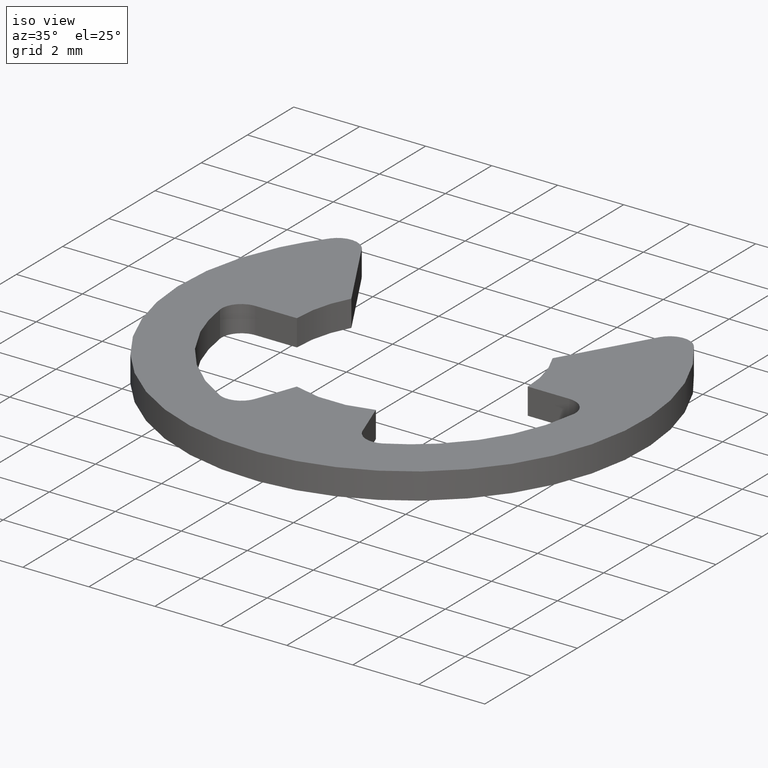
[diagram: clean part render]
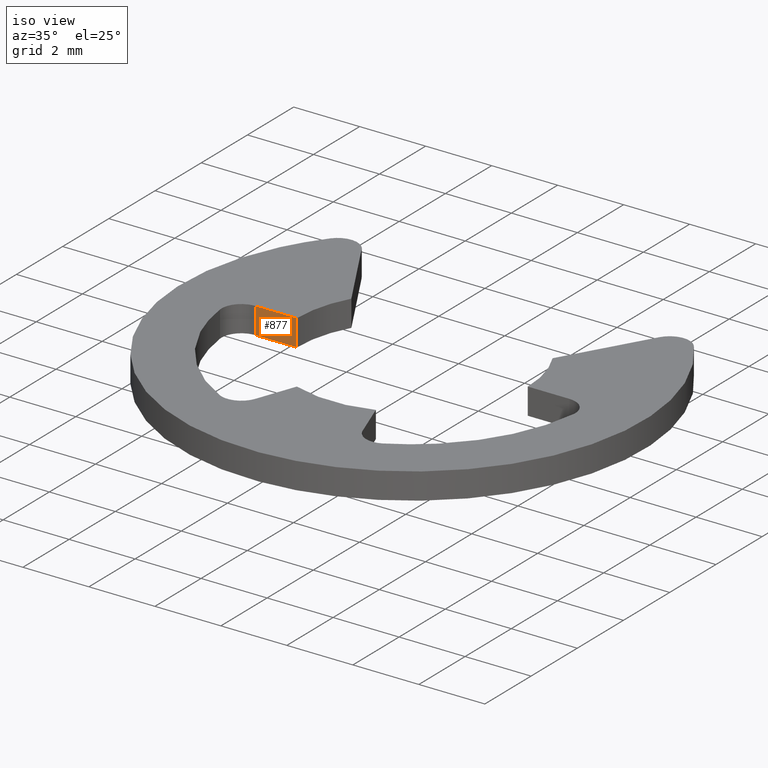
[diagram: same view with one face highlighted and labeled with its STEP entity id]
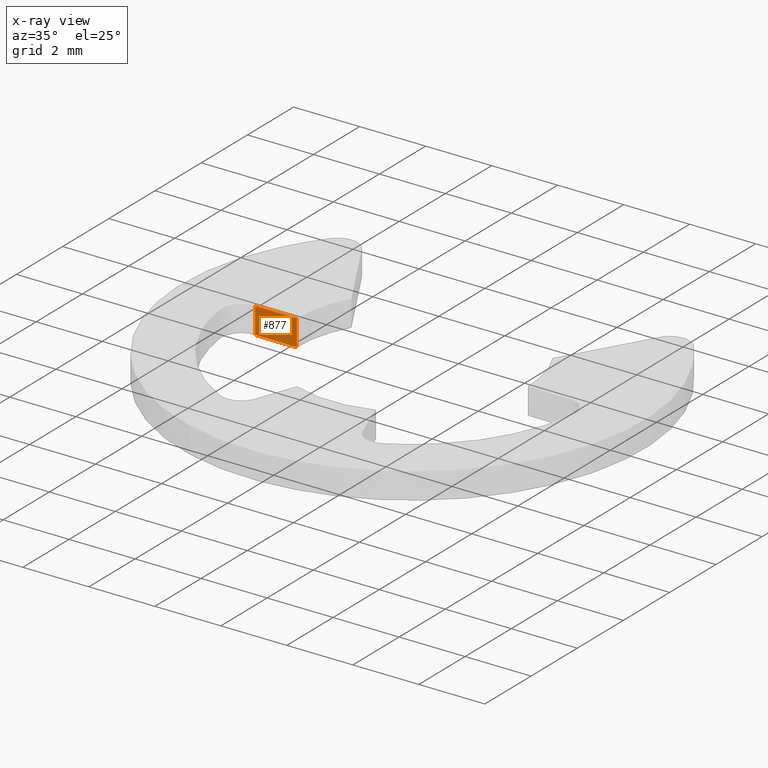
[diagram: x-ray of the same camera — body ghosted, the highlighted face saturated]
A machine part, iso view. The second image highlights one B-rep face of the part: STEP entity #877.
The next image is the same camera in x-ray: the body ghosted, the highlighted face saturated — about 0% of this face is hidden behind the body in this view.
In plain terms, the highlighted face is a freeform B-spline surface patch.
Its self-contained STEP definition (entity closure, byte-faithful):
#75=CARTESIAN_POINT('',(-3.500000000000000,0.0,0.0));
#76=VERTEX_POINT('',#75);
#90=CARTESIAN_POINT('',(-4.762352359916260,0.0,0.0));
#91=VERTEX_POINT('',#90);
#92=CARTESIAN_POINT('',(-4.762352359916260,0.0,0.0));
#93=CARTESIAN_POINT('',(-3.500000000000000,0.0,0.0));
#94=QUASI_UNIFORM_CURVE('',1,(#92,#93),.UNSPECIFIED.,.F.,.U.);
#95=EDGE_CURVE('',#91,#76,#94,.T.);
#489=CARTESIAN_POINT('',(-4.762352359916260,0.0,0.799988000000140));
#490=VERTEX_POINT('',#489);
#506=CARTESIAN_POINT('',(-3.500000000000000,0.0,0.799988000000140));
#507=VERTEX_POINT('',#506);
#508=CARTESIAN_POINT('',(-4.762352359916260,0.0,0.799988000000140));
#509=CARTESIAN_POINT('',(-3.500000000000000,0.0,0.799988000000140));
#510=QUASI_UNIFORM_CURVE('',1,(#508,#509),.UNSPECIFIED.,.F.,.U.);
#511=EDGE_CURVE('',#490,#507,#510,.T.);
#852=CARTESIAN_POINT('',(-4.762352359916260,0.0,0.799988000000140));
#853=CARTESIAN_POINT('',(-4.762352359916260,0.0,0.0));
#854=QUASI_UNIFORM_CURVE('',1,(#852,#853),.UNSPECIFIED.,.F.,.U.);
#855=EDGE_CURVE('',#490,#91,#854,.T.);
#862=CARTESIAN_POINT('',(-4.825406976348001,0.0,-0.039959396191356));
#863=CARTESIAN_POINT('',(-4.825406976348001,0.0,0.839947360429246));
#864=CARTESIAN_POINT('',(-3.436945462572426,0.0,-0.039959396191356));
#865=CARTESIAN_POINT('',(-3.436945462572426,0.0,0.839947360429246));
#866=B_SPLINE_SURFACE_WITH_KNOTS('',1,1,((#862,#864),(#863,#865)),.UNSPECIFIED.,.F.,.F.,.U.,(2,2),(2,2),(0.041708337925747,0.958291624821350),(0.041708256721124,0.958291691124812),.UNSPECIFIED.);
#867=ORIENTED_EDGE('',*,*,#95,.T.);
#868=CARTESIAN_POINT('',(-3.500000000000000,0.0,0.799988000000140));
#869=CARTESIAN_POINT('',(-3.500000000000000,0.0,0.0));
#870=QUASI_UNIFORM_CURVE('',1,(#868,#869),.UNSPECIFIED.,.F.,.U.);
#871=EDGE_CURVE('',#507,#76,#870,.T.);
#872=ORIENTED_EDGE('',*,*,#871,.F.);
#873=ORIENTED_EDGE('',*,*,#511,.F.);
#874=ORIENTED_EDGE('',*,*,#855,.T.);
#875=EDGE_LOOP('',(#867,#872,#873,#874));
#876=FACE_OUTER_BOUND('',#875,.T.);
#877=ADVANCED_FACE('',(#876),#866,.F.);